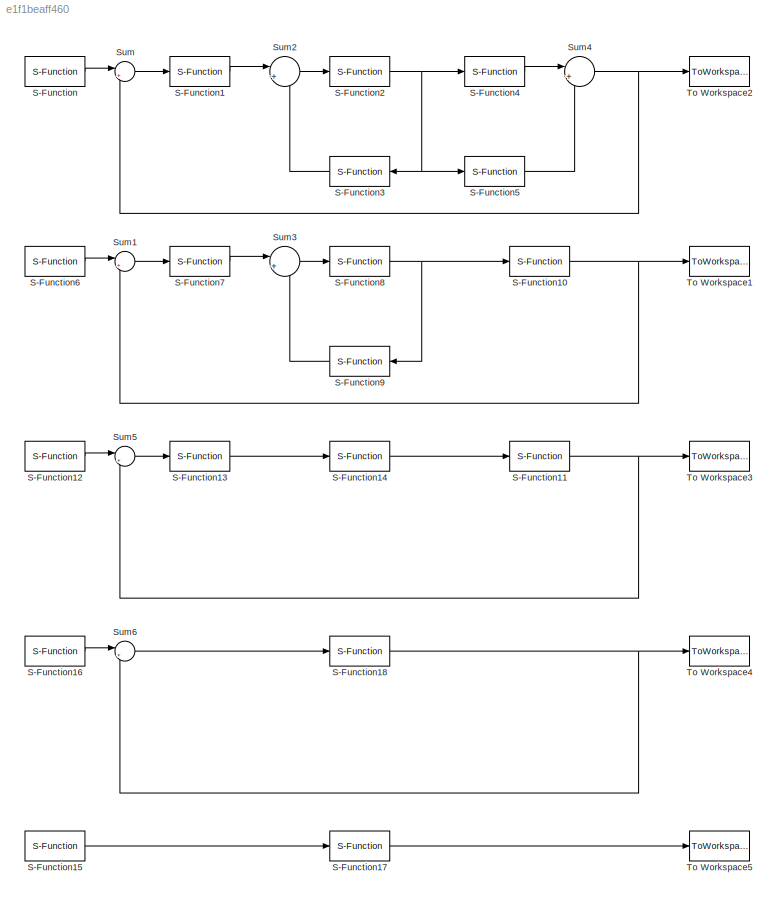
MODEL slx_e1f1beaff460
KIND model
BLOCK [S-Function] S-Function
  EnableBusSupport = off
  FunctionName = Rs
  Ports = [1, 1]
BLOCK [S-Function] S-Function1
  EnableBusSupport = off
  FunctionName = G1
  Ports = [1, 1]
BLOCK [S-Function] S-Function10
  EnableBusSupport = off
  FunctionName = G6
  Ports = [1, 1]
BLOCK [S-Function] S-Function11
  EnableBusSupport = off
  FunctionName = G6
  Ports = [1, 1]
BLOCK [S-Function] S-Function12
  EnableBusSupport = off
  FunctionName = Rs
  Ports = [1, 1]
BLOCK [S-Function] S-Function13
  EnableBusSupport = off
  FunctionName = G1
  Ports = [1, 1]
BLOCK [S-Function] S-Function14
  EnableBusSupport = off
  FunctionName = G7
  Ports = [1, 1]
BLOCK [S-Function] S-Function15
  EnableBusSupport = off
  FunctionName = Rs
  Ports = [1, 1]
BLOCK [S-Function] S-Function16
  EnableBusSupport = off
  FunctionName = Rs
  Ports = [1, 1]
BLOCK [S-Function] S-Function17
  EnableBusSupport = off
  FunctionName = G9
  Ports = [1, 1]
BLOCK [S-Function] S-Function18
  EnableBusSupport = off
  FunctionName = G8
  Ports = [1, 1]
BLOCK [S-Function] S-Function2
  EnableBusSupport = off
  FunctionName = G2
  Ports = [1, 1]
BLOCK [S-Function] S-Function3
  EnableBusSupport = off
  FunctionName = G3
  Ports = [1, 1]
BLOCK [S-Function] S-Function4
  EnableBusSupport = off
  FunctionName = G4
  Ports = [1, 1]
BLOCK [S-Function] S-Function5
  EnableBusSupport = off
  FunctionName = G5
  Ports = [1, 1]
BLOCK [S-Function] S-Function6
  EnableBusSupport = off
  FunctionName = Rs
  Ports = [1, 1]
BLOCK [S-Function] S-Function7
  EnableBusSupport = off
  FunctionName = G1
  Ports = [1, 1]
BLOCK [S-Function] S-Function8
  EnableBusSupport = off
  FunctionName = G2
  Ports = [1, 1]
BLOCK [S-Function] S-Function9
  EnableBusSupport = off
  FunctionName = G3
  Ports = [1, 1]
BLOCK [Sum] Sum
  IconShape = round
  InputSameDT = off
  Inputs = |+-
  OutDataTypeStr = Inherit: Inherit via internal rule
  Ports = [2, 1]
  SaturateOnIntegerOverflow = off
BLOCK [Sum] Sum1
  IconShape = round
  InputSameDT = off
  Inputs = |+-
  OutDataTypeStr = Inherit: Inherit via internal rule
  Ports = [2, 1]
  SaturateOnIntegerOverflow = off
BLOCK [Sum] Sum2
  IconShape = round
  InputSameDT = off
  Inputs = |+-
  OutDataTypeStr = Inherit: Inherit via internal rule
  Ports = [2, 1]
  SaturateOnIntegerOverflow = off
BLOCK [Sum] Sum3
  IconShape = round
  InputSameDT = off
  Inputs = |+-
  OutDataTypeStr = Inherit: Inherit via internal rule
  Ports = [2, 1]
  SaturateOnIntegerOverflow = off
BLOCK [Sum] Sum4
  IconShape = round
  InputSameDT = off
  Inputs = |+-
  OutDataTypeStr = Inherit: Inherit via internal rule
  Ports = [2, 1]
  SaturateOnIntegerOverflow = off
BLOCK [Sum] Sum5
  IconShape = round
  InputSameDT = off
  Inputs = |+-
  OutDataTypeStr = Inherit: Inherit via internal rule
  Ports = [2, 1]
  SaturateOnIntegerOverflow = off
BLOCK [Sum] Sum6
  IconShape = round
  InputSameDT = off
  Inputs = |+-
  OutDataTypeStr = Inherit: Inherit via internal rule
  Ports = [2, 1]
  SaturateOnIntegerOverflow = off
BLOCK [ToWorkspace] To Workspace1
  MaxDataPoints = inf
  Ports = [1]
  SampleTime = -1
  VariableName = Ys1
BLOCK [ToWorkspace] To Workspace2
  MaxDataPoints = inf
  Ports = [1]
  SampleTime = -1
  VariableName = Ys
BLOCK [ToWorkspace] To Workspace3
  MaxDataPoints = inf
  Ports = [1]
  SampleTime = -1
  VariableName = Ys2
BLOCK [ToWorkspace] To Workspace4
  MaxDataPoints = inf
  Ports = [1]
  SampleTime = -1
  VariableName = Ys3
BLOCK [ToWorkspace] To Workspace5
  MaxDataPoints = inf
  Ports = [1]
  SampleTime = -1
  VariableName = Ys4
NET S-Function10:1 -> Sum1:2, To Workspace1:1
NET S-Function11:1 -> Sum5:2, To Workspace3:1
LINE S-Function12:1 -> Sum5:1
LINE S-Function13:1 -> S-Function14:1
LINE S-Function14:1 -> S-Function11:1
LINE S-Function15:1 -> S-Function17:1
LINE S-Function16:1 -> Sum6:1
LINE S-Function17:1 -> To Workspace5:1
NET S-Function18:1 -> Sum6:2, To Workspace4:1
LINE S-Function1:1 -> Sum2:1
NET S-Function2:1 -> S-Function3:1, S-Function4:1, S-Function5:1
LINE S-Function3:1 -> Sum2:2
LINE S-Function4:1 -> Sum4:1
LINE S-Function5:1 -> Sum4:2
LINE S-Function6:1 -> Sum1:1
LINE S-Function7:1 -> Sum3:1
NET S-Function8:1 -> S-Function10:1, S-Function9:1
LINE S-Function9:1 -> Sum3:2
LINE S-Function:1 -> Sum:1
LINE Sum1:1 -> S-Function7:1
LINE Sum2:1 -> S-Function2:1
LINE Sum3:1 -> S-Function8:1
NET Sum4:1 -> Sum:2, To Workspace2:1
LINE Sum5:1 -> S-Function13:1
LINE Sum6:1 -> S-Function18:1
LINE Sum:1 -> S-Function1:1
note: NET lines group one-source signal fan-out (src -> all destinations, sorted); 1:1 wires keep LINE
